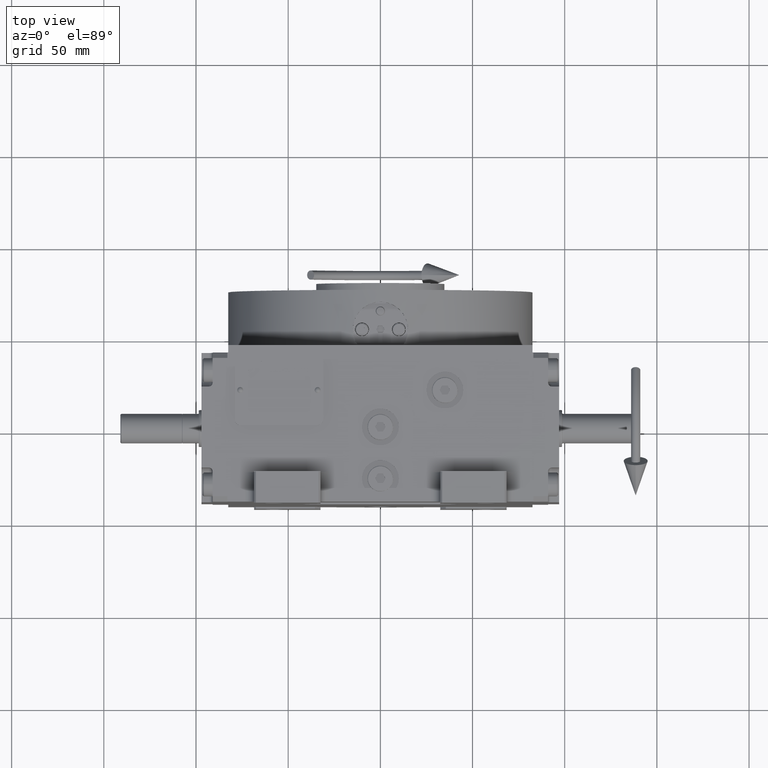
[diagram: clean part render]
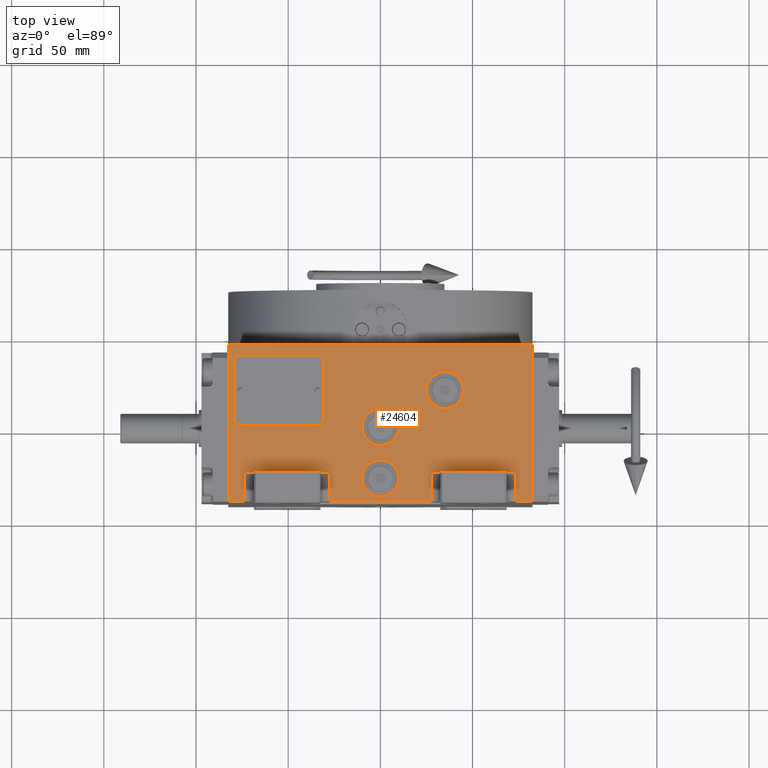
[diagram: same view with one face highlighted and labeled with its STEP entity id]
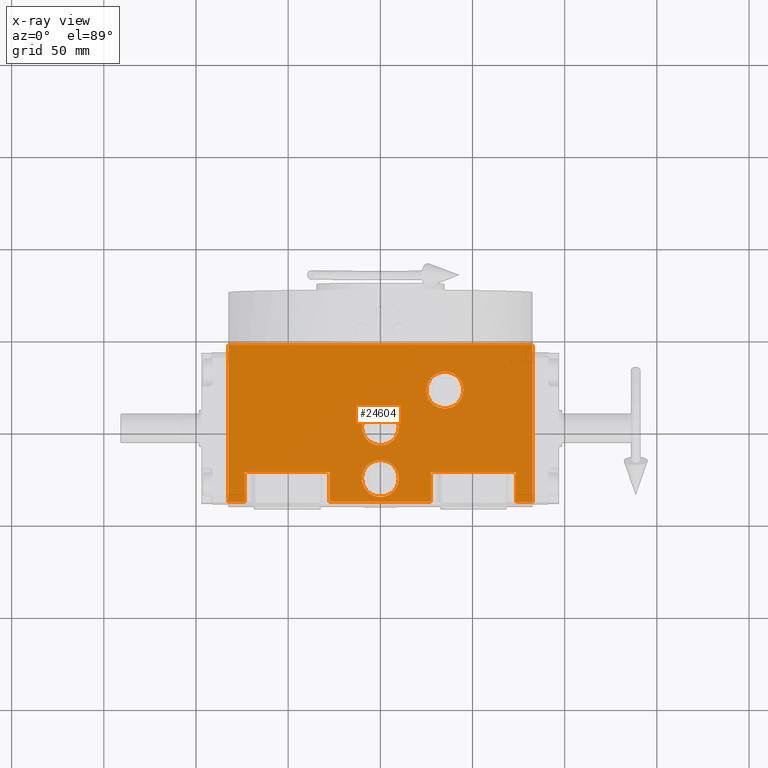
[diagram: x-ray of the same camera — body ghosted, the highlighted face saturated]
A machine part, top view. The second image highlights one B-rep face of the part: STEP entity #24604.
The next image is the same camera in x-ray: the body ghosted, the highlighted face saturated — about 0% of this face is hidden behind the body in this view.
In plain terms, the highlighted planar face has unit normal (0, 0, 1).
Its self-contained STEP definition (entity closure, byte-faithful):
#266 = VECTOR ( 'NONE', #61492, 1000.000000000000000 ) ;
#447 = CARTESIAN_POINT ( 'NONE',  ( -82.50000000000000000, -40.50000000000000000, 114.0000000000000000 ) ) ;
#1074 = CARTESIAN_POINT ( 'NONE',  ( -73.50000000000000000, -24.50000000000000000, 114.0000000000000000 ) ) ;
#1131 = ORIENTED_EDGE ( 'NONE', *, *, #44301, .F. ) ;
#1860 = EDGE_CURVE ( 'NONE', #41454, #16959, #54413, .T. ) ;
#1955 = DIRECTION ( 'NONE',  ( 0.000000000000000000, 0.000000000000000000, 1.000000000000000000 ) ) ;
#2434 = EDGE_CURVE ( 'NONE', #52064, #28268, #23092, .T. ) ;
#2550 = ORIENTED_EDGE ( 'NONE', *, *, #1860, .F. ) ;
#3728 = VECTOR ( 'NONE', #15641, 1000.000000000000000 ) ;
#3947 = ORIENTED_EDGE ( 'NONE', *, *, #51578, .T. ) ;
#4119 = DIRECTION ( 'NONE',  ( 1.000000000000000000, 0.000000000000000000, 0.000000000000000000 ) ) ;
#4646 = DIRECTION ( 'NONE',  ( 0.000000000000000000, 0.000000000000000000, 1.000000000000000000 ) ) ;
#5172 = DIRECTION ( 'NONE',  ( 1.000000000000000000, 0.000000000000000000, 0.000000000000000000 ) ) ;
#5306 = DIRECTION ( 'NONE',  ( 0.000000000000000000, 1.000000000000000000, 0.000000000000000000 ) ) ;
#6228 = CARTESIAN_POINT ( 'NONE',  ( 0.000000000000000000, -28.00000000000000000, 114.0000000000000000 ) ) ;
#6376 = CIRCLE ( 'NONE', #42497, 10.00000000000000000 ) ;
#6569 = FACE_BOUND ( 'NONE', #24328, .T. ) ;
#8773 = LINE ( 'NONE', #39165, #39377 ) ;
#8818 = ORIENTED_EDGE ( 'NONE', *, *, #17606, .F. ) ;
#8877 = VECTOR ( 'NONE', #19009, 1000.000000000000000 ) ;
#8948 = LINE ( 'NONE', #48398, #13705 ) ;
#9072 = ORIENTED_EDGE ( 'NONE', *, *, #62112, .T. ) ;
#10019 = LINE ( 'NONE', #45245, #29820 ) ;
#10096 = ORIENTED_EDGE ( 'NONE', *, *, #22904, .F. ) ;
#10423 = EDGE_CURVE ( 'NONE', #14485, #49596, #58449, .T. ) ;
#10432 = AXIS2_PLACEMENT_3D ( 'NONE', #46015, #10798, #35690 ) ;
#10481 = CARTESIAN_POINT ( 'NONE',  ( 82.50000000000000000, -40.50000000000000000, 114.0000000000000000 ) ) ;
#10759 = CARTESIAN_POINT ( 'NONE',  ( 82.50000000000000000, 44.50000000000000000, 114.0000000000000000 ) ) ;
#10798 = DIRECTION ( 'NONE',  ( 0.000000000000000000, 0.000000000000000000, 1.000000000000000000 ) ) ;
#10941 = CARTESIAN_POINT ( 'NONE',  ( 35.00000000000000000, 20.00000000000000000, 114.0000000000000000 ) ) ;
#11431 = ORIENTED_EDGE ( 'NONE', *, *, #59413, .F. ) ;
#11990 = VECTOR ( 'NONE', #55388, 1000.000000000000000 ) ;
#12078 = PLANE ( 'NONE',  #10432 ) ;
#13536 = EDGE_CURVE ( 'NONE', #47724, #28609, #29402, .T. ) ;
#13705 = VECTOR ( 'NONE', #4119, 1000.000000000000000 ) ;
#14485 = VERTEX_POINT ( 'NONE', #19229 ) ;
#14541 = EDGE_CURVE ( 'NONE', #18982, #57005, #45680, .T. ) ;
#14620 = EDGE_CURVE ( 'NONE', #52064, #57005, #26255, .T. ) ;
#14859 = CARTESIAN_POINT ( 'NONE',  ( 10.00000000000000000, -1.072081766451089851E-15, 114.0000000000000000 ) ) ;
#15528 = ORIENTED_EDGE ( 'NONE', *, *, #13536, .F. ) ;
#15641 = DIRECTION ( 'NONE',  ( 1.000000000000000000, 0.000000000000000000, 0.000000000000000000 ) ) ;
#15871 = AXIS2_PLACEMENT_3D ( 'NONE', #47970, #4646, #24673 ) ;
#15927 = VERTEX_POINT ( 'NONE', #61212 ) ;
#15967 = FACE_BOUND ( 'NONE', #39293, .T. ) ;
#16377 = ORIENTED_EDGE ( 'NONE', *, *, #29620, .F. ) ;
#16880 = VERTEX_POINT ( 'NONE', #37113 ) ;
#16959 = VERTEX_POINT ( 'NONE', #45859 ) ;
#17606 = EDGE_CURVE ( 'NONE', #18982, #19905, #28076, .T. ) ;
#18982 = VERTEX_POINT ( 'NONE', #21230 ) ;
#19009 = DIRECTION ( 'NONE',  ( 0.000000000000000000, 1.000000000000000000, 0.000000000000000000 ) ) ;
#19042 = EDGE_LOOP ( 'NONE', ( #16377, #15528 ) ) ;
#19229 = CARTESIAN_POINT ( 'NONE',  ( 73.50000000000000000, -40.50000000000000000, 114.0000000000000000 ) ) ;
#19905 = VERTEX_POINT ( 'NONE', #32257 ) ;
#20207 = CARTESIAN_POINT ( 'NONE',  ( -27.49999999999934630, -40.50000000000000000, 114.0000000000000000 ) ) ;
#21230 = CARTESIAN_POINT ( 'NONE',  ( -82.50000000000000000, -40.50000000000000000, 114.0000000000000000 ) ) ;
#21484 = DIRECTION ( 'NONE',  ( 1.000000000000000000, -3.552713678800500140E-16, 0.000000000000000000 ) ) ;
#22904 = EDGE_CURVE ( 'NONE', #19905, #53574, #8773, .T. ) ;
#23092 = LINE ( 'NONE', #42483, #47307 ) ;
#23426 = CARTESIAN_POINT ( 'NONE',  ( 0.000000000000000000, -28.00000000000000000, 114.0000000000000000 ) ) ;
#23437 = AXIS2_PLACEMENT_3D ( 'NONE', #23426, #33416, #57366 ) ;
#24328 = EDGE_LOOP ( 'NONE', ( #11431, #56269 ) ) ;
#24604 = ADVANCED_FACE ( 'NONE', ( #15967, #6569, #60247, #50547 ), #12078, .T. ) ;
#24673 = DIRECTION ( 'NONE',  ( -1.000000000000000000, 8.881784197001247886E-17, 0.000000000000000000 ) ) ;
#24699 = CARTESIAN_POINT ( 'NONE',  ( -27.49999999999934630, -40.50000000000000000, 114.0000000000000000 ) ) ;
#25986 = ORIENTED_EDGE ( 'NONE', *, *, #2434, .T. ) ;
#26255 = LINE ( 'NONE', #1074, #11990 ) ;
#27578 = EDGE_CURVE ( 'NONE', #30450, #33405, #45813, .T. ) ;
#28076 = LINE ( 'NONE', #47819, #63500 ) ;
#28268 = VERTEX_POINT ( 'NONE', #48459 ) ;
#28609 = VERTEX_POINT ( 'NONE', #37014 ) ;
#28681 = CARTESIAN_POINT ( 'NONE',  ( 73.50000000000000000, -40.50000000000000000, 114.0000000000000000 ) ) ;
#28706 = EDGE_CURVE ( 'NONE', #34450, #37293, #37311, .T. ) ;
#29402 = CIRCLE ( 'NONE', #34591, 10.00000000000000178 ) ;
#29620 = EDGE_CURVE ( 'NONE', #28609, #47724, #33461, .T. ) ;
#29820 = VECTOR ( 'NONE', #5172, 1000.000000000000000 ) ;
#29871 = CARTESIAN_POINT ( 'NONE',  ( 0.000000000000000000, 3.552713678800499352E-15, 114.0000000000000000 ) ) ;
#30450 = VERTEX_POINT ( 'NONE', #43103 ) ;
#30803 = VECTOR ( 'NONE', #58977, 1000.000000000000000 ) ;
#30832 = DIRECTION ( 'NONE',  ( 0.000000000000000000, 0.000000000000000000, 1.000000000000000000 ) ) ;
#31269 = ORIENTED_EDGE ( 'NONE', *, *, #14620, .F. ) ;
#32044 = LINE ( 'NONE', #46939, #266 ) ;
#32257 = CARTESIAN_POINT ( 'NONE',  ( -82.50000000000000000, 44.50000000000000000, 114.0000000000000000 ) ) ;
#32499 = VECTOR ( 'NONE', #57034, 1000.000000000000000 ) ;
#33234 = ORIENTED_EDGE ( 'NONE', *, *, #28706, .T. ) ;
#33405 = VERTEX_POINT ( 'NONE', #14859 ) ;
#33416 = DIRECTION ( 'NONE',  ( 0.000000000000000000, 0.000000000000000000, 1.000000000000000000 ) ) ;
#33461 = CIRCLE ( 'NONE', #61369, 10.00000000000000178 ) ;
#34450 = VERTEX_POINT ( 'NONE', #20207 ) ;
#34591 = AXIS2_PLACEMENT_3D ( 'NONE', #10941, #46486, #51325 ) ;
#34795 = AXIS2_PLACEMENT_3D ( 'NONE', #6228, #45666, #46632 ) ;
#35690 = DIRECTION ( 'NONE',  ( 1.000000000000000000, 0.000000000000000000, 0.000000000000000000 ) ) ;
#36762 = ORIENTED_EDGE ( 'NONE', *, *, #47377, .F. ) ;
#37014 = CARTESIAN_POINT ( 'NONE',  ( 45.00000000000000000, 20.00000000000000000, 114.0000000000000000 ) ) ;
#37113 = CARTESIAN_POINT ( 'NONE',  ( 82.50000000000000000, -40.50000000000000000, 114.0000000000000000 ) ) ;
#37132 = EDGE_CURVE ( 'NONE', #16880, #53574, #49605, .T. ) ;
#37293 = VERTEX_POINT ( 'NONE', #50858 ) ;
#37311 = LINE ( 'NONE', #37952, #32499 ) ;
#37952 = CARTESIAN_POINT ( 'NONE',  ( -27.49999999999934630, -40.50000000000000000, 114.0000000000000000 ) ) ;
#38218 = CARTESIAN_POINT ( 'NONE',  ( 73.50000000000000000, -24.50000000000000000, 114.0000000000000000 ) ) ;
#38760 = ORIENTED_EDGE ( 'NONE', *, *, #49184, .F. ) ;
#39165 = CARTESIAN_POINT ( 'NONE',  ( -82.50000000000000000, 44.50000000000000000, 114.0000000000000000 ) ) ;
#39293 = EDGE_LOOP ( 'NONE', ( #2550, #36762 ) ) ;
#39377 = VECTOR ( 'NONE', #53396, 1000.000000000000000 ) ;
#40871 = CARTESIAN_POINT ( 'NONE',  ( -73.50000000000000000, -24.50000000000000000, 114.0000000000000000 ) ) ;
#41454 = VERTEX_POINT ( 'NONE', #55503 ) ;
#41691 = CARTESIAN_POINT ( 'NONE',  ( 35.00000000000000000, 20.00000000000000000, 114.0000000000000000 ) ) ;
#42483 = CARTESIAN_POINT ( 'NONE',  ( -73.50000000000000000, -24.50000000000000000, 114.0000000000000000 ) ) ;
#42497 = AXIS2_PLACEMENT_3D ( 'NONE', #29871, #30832, #21484 ) ;
#42966 = DIRECTION ( 'NONE',  ( 0.000000000000000000, 1.000000000000000000, 0.000000000000000000 ) ) ;
#43103 = CARTESIAN_POINT ( 'NONE',  ( -10.00000000000000000, 0.000000000000000000, 114.0000000000000000 ) ) ;
#44301 = EDGE_CURVE ( 'NONE', #15927, #37293, #32044, .T. ) ;
#44425 = LINE ( 'NONE', #24699, #53527 ) ;
#45245 = CARTESIAN_POINT ( 'NONE',  ( 73.50000000000000000, -40.50000000000000000, 114.0000000000000000 ) ) ;
#45666 = DIRECTION ( 'NONE',  ( 0.000000000000000000, 0.000000000000000000, 1.000000000000000000 ) ) ;
#45680 = LINE ( 'NONE', #447, #3728 ) ;
#45813 = CIRCLE ( 'NONE', #15871, 10.00000000000000000 ) ;
#45859 = CARTESIAN_POINT ( 'NONE',  ( -10.00000000000000000, -28.00000000000000000, 114.0000000000000000 ) ) ;
#46015 = CARTESIAN_POINT ( 'NONE',  ( -82.50000000000000000, -40.50000000000000000, 114.0000000000000000 ) ) ;
#46486 = DIRECTION ( 'NONE',  ( 0.000000000000000000, 0.000000000000000000, 1.000000000000000000 ) ) ;
#46632 = DIRECTION ( 'NONE',  ( 1.000000000000000000, 0.000000000000000000, 0.000000000000000000 ) ) ;
#46939 = CARTESIAN_POINT ( 'NONE',  ( 27.49999999999934630, -24.50000000000000000, 114.0000000000000000 ) ) ;
#47307 = VECTOR ( 'NONE', #57358, 1000.000000000000000 ) ;
#47377 = EDGE_CURVE ( 'NONE', #16959, #41454, #57521, .T. ) ;
#47724 = VERTEX_POINT ( 'NONE', #61900 ) ;
#47819 = CARTESIAN_POINT ( 'NONE',  ( -82.50000000000000000, -40.50000000000000000, 114.0000000000000000 ) ) ;
#47970 = CARTESIAN_POINT ( 'NONE',  ( 0.000000000000000000, -8.881784197001250351E-16, 114.0000000000000000 ) ) ;
#48398 = CARTESIAN_POINT ( 'NONE',  ( 27.49999999999934630, -24.50000000000000000, 114.0000000000000000 ) ) ;
#48459 = CARTESIAN_POINT ( 'NONE',  ( -27.49999999999934630, -24.50000000000000000, 114.0000000000000000 ) ) ;
#49184 = EDGE_CURVE ( 'NONE', #34450, #28268, #44425, .T. ) ;
#49543 = ORIENTED_EDGE ( 'NONE', *, *, #14541, .T. ) ;
#49596 = VERTEX_POINT ( 'NONE', #38218 ) ;
#49605 = LINE ( 'NONE', #10481, #30803 ) ;
#50547 = FACE_OUTER_BOUND ( 'NONE', #57927, .T. ) ;
#50858 = CARTESIAN_POINT ( 'NONE',  ( 27.49999999999934630, -40.50000000000000000, 114.0000000000000000 ) ) ;
#51325 = DIRECTION ( 'NONE',  ( -1.000000000000000000, -3.469446951953613696E-16, 0.000000000000000000 ) ) ;
#51578 = EDGE_CURVE ( 'NONE', #14485, #16880, #10019, .T. ) ;
#52064 = VERTEX_POINT ( 'NONE', #40871 ) ;
#53396 = DIRECTION ( 'NONE',  ( 1.000000000000000000, 0.000000000000000000, 0.000000000000000000 ) ) ;
#53527 = VECTOR ( 'NONE', #5306, 1000.000000000000000 ) ;
#53574 = VERTEX_POINT ( 'NONE', #10759 ) ;
#54413 = CIRCLE ( 'NONE', #34795, 10.00000000000000000 ) ;
#55388 = DIRECTION ( 'NONE',  ( 0.000000000000000000, -1.000000000000000000, 0.000000000000000000 ) ) ;
#55503 = CARTESIAN_POINT ( 'NONE',  ( 10.00000000000000000, -28.00000000000000000, 114.0000000000000000 ) ) ;
#56269 = ORIENTED_EDGE ( 'NONE', *, *, #27578, .F. ) ;
#57005 = VERTEX_POINT ( 'NONE', #58822 ) ;
#57034 = DIRECTION ( 'NONE',  ( 1.000000000000000000, 0.000000000000000000, 0.000000000000000000 ) ) ;
#57358 = DIRECTION ( 'NONE',  ( 1.000000000000000000, 0.000000000000000000, 0.000000000000000000 ) ) ;
#57366 = DIRECTION ( 'NONE',  ( -1.000000000000000000, -3.469446951953614189E-16, 0.000000000000000000 ) ) ;
#57483 = ORIENTED_EDGE ( 'NONE', *, *, #37132, .T. ) ;
#57521 = CIRCLE ( 'NONE', #23437, 10.00000000000000000 ) ;
#57927 = EDGE_LOOP ( 'NONE', ( #9072, #60059, #3947, #57483, #10096, #8818, #49543, #31269, #25986, #38760, #33234, #1131 ) ) ;
#58449 = LINE ( 'NONE', #28681, #8877 ) ;
#58822 = CARTESIAN_POINT ( 'NONE',  ( -73.50000000000000000, -40.50000000000000000, 114.0000000000000000 ) ) ;
#58977 = DIRECTION ( 'NONE',  ( 0.000000000000000000, 1.000000000000000000, 0.000000000000000000 ) ) ;
#59413 = EDGE_CURVE ( 'NONE', #33405, #30450, #6376, .T. ) ;
#60059 = ORIENTED_EDGE ( 'NONE', *, *, #10423, .F. ) ;
#60247 = FACE_BOUND ( 'NONE', #19042, .T. ) ;
#61212 = CARTESIAN_POINT ( 'NONE',  ( 27.49999999999934630, -24.50000000000000000, 114.0000000000000000 ) ) ;
#61369 = AXIS2_PLACEMENT_3D ( 'NONE', #41691, #1955, #61748 ) ;
#61492 = DIRECTION ( 'NONE',  ( -8.881784197001250351E-16, -1.000000000000000000, 0.000000000000000000 ) ) ;
#61748 = DIRECTION ( 'NONE',  ( 1.000000000000000000, 3.469446951953613696E-16, 0.000000000000000000 ) ) ;
#61900 = CARTESIAN_POINT ( 'NONE',  ( 25.00000000000000000, 20.00000000000000000, 114.0000000000000000 ) ) ;
#62112 = EDGE_CURVE ( 'NONE', #15927, #49596, #8948, .T. ) ;
#63500 = VECTOR ( 'NONE', #42966, 1000.000000000000000 ) ;